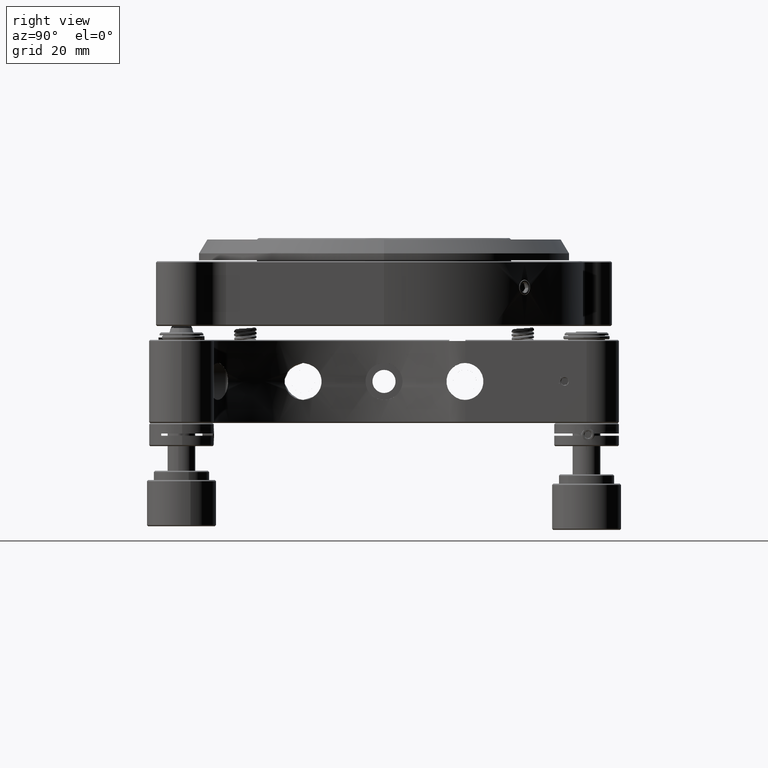
[diagram: clean part render]
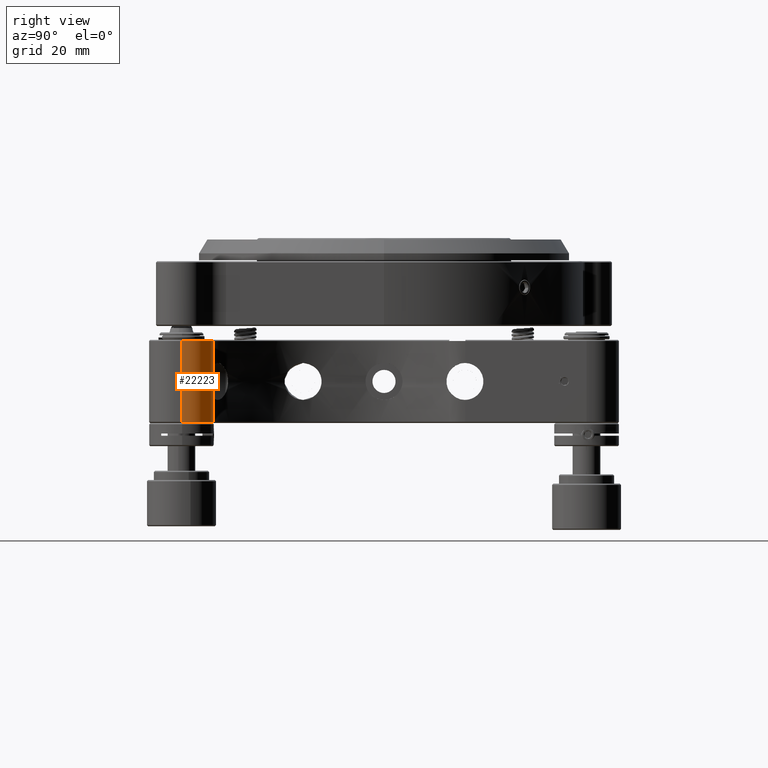
[diagram: same view with one face highlighted and labeled with its STEP entity id]
A machine part, right view. The second image highlights one B-rep face of the part: STEP entity #22223.
In plain terms, the highlighted face is a freeform B-spline surface patch.
Its self-contained STEP definition (entity closure, byte-faithful):
#446 = DIRECTION ( 'NONE',  ( -2.478176394252584099E-16, -2.478176394252581634E-16, 1.000000000000000000 ) ) ;
#995 =( BOUNDED_SURFACE ( )  B_SPLINE_SURFACE ( 2, 1, ( 
 ( #13026, #19525 ),
 ( #10845, #4175 ),
 ( #22870, #3970 ),
 ( #6932, #18934 ),
 ( #30970, #1025 ),
 ( #34124, #7124 ),
 ( #31173, #1221 ),
 ( #13225, #22300 ),
 ( #25263, #34325 ) ),
 .UNSPECIFIED., .F., .F., .T. ) 
 B_SPLINE_SURFACE_WITH_KNOTS ( ( 3, 2, 2, 2, 3 ),
 ( 2, 2 ),
 ( 0.000000000000000000, 1.570796326794896558, 3.141592653589793116, 4.712388980384689674, 6.283185307179586232 ),
 ( 0.000000000000000000, 21.00240000000001217 ),
 .UNSPECIFIED. ) 
 GEOMETRIC_REPRESENTATION_ITEM ( )  RATIONAL_B_SPLINE_SURFACE ( (
 ( 1.000000000000000000, 1.000000000000000000),
 ( 0.7071067811865475727, 0.7071067811865475727),
 ( 1.000000000000000000, 1.000000000000000000),
 ( 0.7071067811865475727, 0.7071067811865475727),
 ( 1.000000000000000000, 1.000000000000000000),
 ( 0.7071067811865475727, 0.7071067811865475727),
 ( 1.000000000000000000, 1.000000000000000000),
 ( 0.7071067811865475727, 0.7071067811865475727),
 ( 1.000000000000000000, 1.000000000000000000) ) ) 
 REPRESENTATION_ITEM ( '' )  SURFACE ( )  );
#1025 = CARTESIAN_POINT ( 'NONE',  ( 50.80000000000001137, -43.80000000000000426, 10.50119999999999720 ) ) ;
#1221 = CARTESIAN_POINT ( 'NONE',  ( 43.80000000000001137, -36.80000000000000426, 10.50119999999999720 ) ) ;
#2106 = VECTOR ( 'NONE', #29344, 1000.000000000000000 ) ;
#3046 = AXIS2_PLACEMENT_3D ( 'NONE', #35860, #18290, #33673 ) ;
#3577 = EDGE_CURVE ( 'NONE', #5640, #34396, #25081, .T. ) ;
#3970 = CARTESIAN_POINT ( 'NONE',  ( 43.80000000000001137, -50.80000000000000426, 10.50119999999999720 ) ) ;
#4175 = CARTESIAN_POINT ( 'NONE',  ( 36.80000000000001847, -50.80000000000000426, 10.50119999999999720 ) ) ;
#5640 = VERTEX_POINT ( 'NONE', #33365 ) ;
#6932 = CARTESIAN_POINT ( 'NONE',  ( 50.80000000000000426, -50.80000000000000426, -10.50120000000001141 ) ) ;
#7124 = CARTESIAN_POINT ( 'NONE',  ( 50.80000000000000426, -36.80000000000001137, 10.50119999999999720 ) ) ;
#8067 = LINE ( 'NONE', #20472, #2106 ) ;
#8492 = EDGE_CURVE ( 'NONE', #31749, #16072, #15433, .T. ) ;
#10845 = CARTESIAN_POINT ( 'NONE',  ( 36.80000000000001847, -50.80000000000000426, -10.50120000000001141 ) ) ;
#13026 = CARTESIAN_POINT ( 'NONE',  ( 36.80000000000001137, -43.80000000000000426, -10.50120000000001141 ) ) ;
#13225 = CARTESIAN_POINT ( 'NONE',  ( 36.80000000000001847, -36.80000000000001137, -10.50120000000001141 ) ) ;
#13462 = EDGE_CURVE ( 'NONE', #5640, #16072, #8067, .T. ) ;
#15433 = CIRCLE ( 'NONE', #34342, 6.999999999999992006 ) ;
#15592 = DIRECTION ( 'NONE',  ( 0.000000000000000000, -1.000000000000000000, -2.478176394252584592E-16 ) ) ;
#16072 = VERTEX_POINT ( 'NONE', #38980 ) ;
#17973 = EDGE_LOOP ( 'NONE', ( #27167, #39017, #23527, #18026 ) ) ;
#18026 = ORIENTED_EDGE ( 'NONE', *, *, #3577, .F. ) ;
#18290 = DIRECTION ( 'NONE',  ( 2.478176394252579169E-16, -2.478176394252579169E-16, -1.000000000000000000 ) ) ;
#18934 = CARTESIAN_POINT ( 'NONE',  ( 50.80000000000000426, -50.80000000000000426, 10.50119999999999720 ) ) ;
#19525 = CARTESIAN_POINT ( 'NONE',  ( 36.80000000000001137, -43.80000000000000426, 10.50119999999999720 ) ) ;
#20472 = CARTESIAN_POINT ( 'NONE',  ( 43.79999999999999716, -36.79999999999999716, 10.50119999999999720 ) ) ;
#21764 = EDGE_CURVE ( 'NONE', #31749, #34396, #26698, .T. ) ;
#22223 = ADVANCED_FACE ( 'NONE', ( #31748 ), #995, .T. ) ;
#22300 = CARTESIAN_POINT ( 'NONE',  ( 36.80000000000001847, -36.80000000000001137, 10.50119999999999720 ) ) ;
#22870 = CARTESIAN_POINT ( 'NONE',  ( 43.80000000000001137, -50.80000000000000426, -10.50120000000001141 ) ) ;
#23164 = CARTESIAN_POINT ( 'NONE',  ( 50.80000000000001137, -43.80000000000000426, -6.938893903907228378E-15 ) ) ;
#23527 = ORIENTED_EDGE ( 'NONE', *, *, #21764, .T. ) ;
#25072 = CARTESIAN_POINT ( 'NONE',  ( 43.80000000000000426, -43.80000000000000426, 8.750000000000000000 ) ) ;
#25081 = CIRCLE ( 'NONE', #3046, 6.999999999999999112 ) ;
#25263 = CARTESIAN_POINT ( 'NONE',  ( 36.80000000000001137, -43.80000000000000426, -10.50120000000001141 ) ) ;
#26698 = LINE ( 'NONE', #23164, #38396 ) ;
#26947 = CARTESIAN_POINT ( 'NONE',  ( 50.80000000000001137, -43.80000000000000426, -8.750000000000012434 ) ) ;
#27167 = ORIENTED_EDGE ( 'NONE', *, *, #13462, .T. ) ;
#29344 = DIRECTION ( 'NONE',  ( -0.000000000000000000, -0.000000000000000000, 1.000000000000000000 ) ) ;
#30970 = CARTESIAN_POINT ( 'NONE',  ( 50.80000000000001137, -43.80000000000000426, -10.50120000000001141 ) ) ;
#31173 = CARTESIAN_POINT ( 'NONE',  ( 43.80000000000001137, -36.80000000000000426, -10.50120000000001141 ) ) ;
#31748 = FACE_OUTER_BOUND ( 'NONE', #17973, .T. ) ;
#31749 = VERTEX_POINT ( 'NONE', #35275 ) ;
#33365 = CARTESIAN_POINT ( 'NONE',  ( 43.80000000000000426, -36.79999999999999716, -8.750000000000014211 ) ) ;
#33673 = DIRECTION ( 'NONE',  ( 0.000000000000000000, -1.000000000000000000, 2.478176394252581634E-16 ) ) ;
#34124 = CARTESIAN_POINT ( 'NONE',  ( 50.80000000000000426, -36.80000000000001137, -10.50120000000001141 ) ) ;
#34325 = CARTESIAN_POINT ( 'NONE',  ( 36.80000000000001137, -43.80000000000000426, 10.50119999999999720 ) ) ;
#34342 = AXIS2_PLACEMENT_3D ( 'NONE', #25072, #446, #15592 ) ;
#34396 = VERTEX_POINT ( 'NONE', #26947 ) ;
#35275 = CARTESIAN_POINT ( 'NONE',  ( 50.80000000000001137, -43.80000000000000426, 8.749999999999996447 ) ) ;
#35860 = CARTESIAN_POINT ( 'NONE',  ( 43.80000000000001137, -43.80000000000001137, -8.750000000000010658 ) ) ;
#38396 = VECTOR ( 'NONE', #38741, 1000.000000000000000 ) ;
#38741 = DIRECTION ( 'NONE',  ( -0.000000000000000000, -0.000000000000000000, -1.000000000000000000 ) ) ;
#38980 = CARTESIAN_POINT ( 'NONE',  ( 43.80000000000000426, -36.79999999999999716, 8.750000000000000000 ) ) ;
#39017 = ORIENTED_EDGE ( 'NONE', *, *, #8492, .F. ) ;